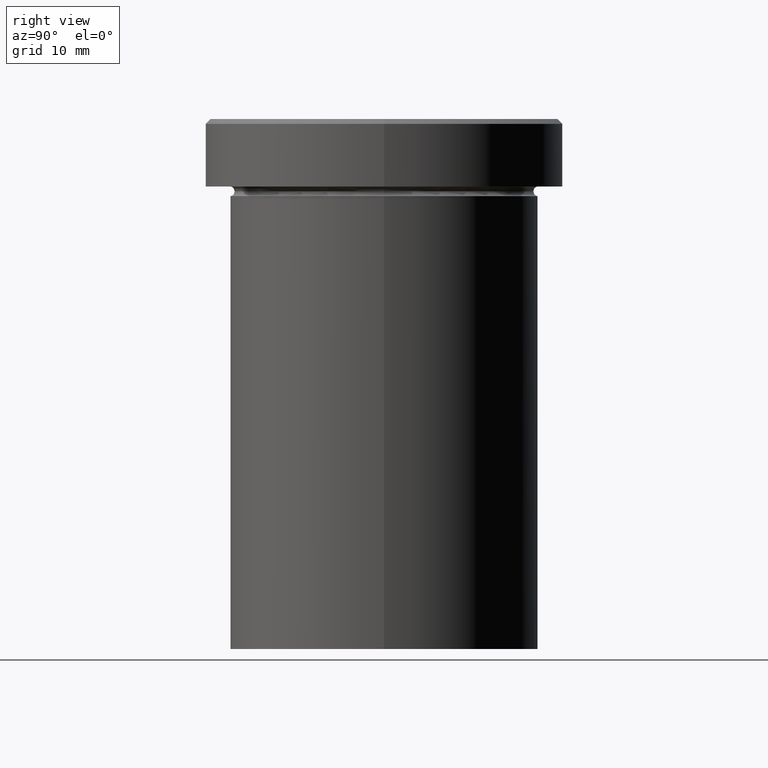
[diagram: clean part render]
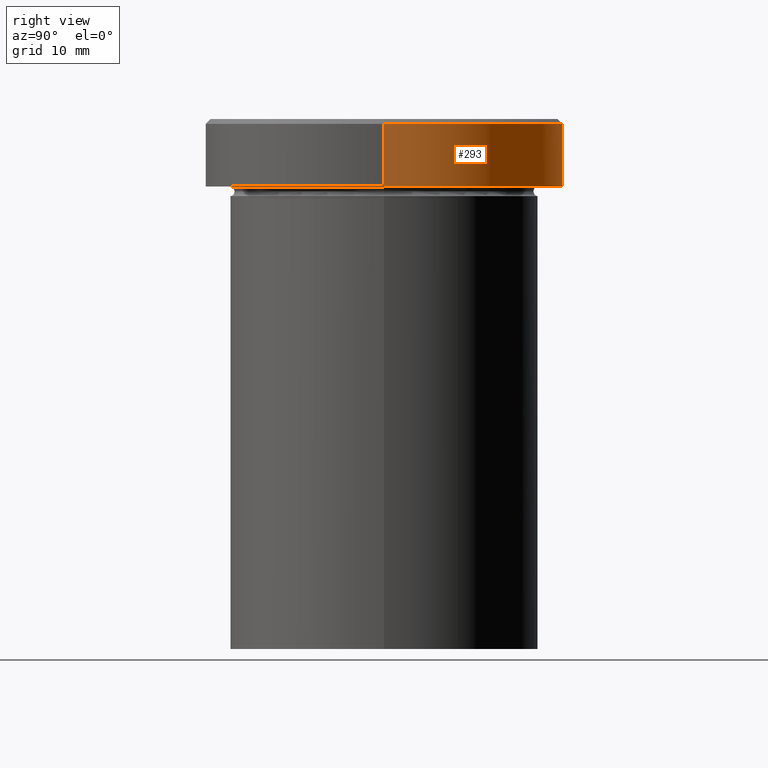
[diagram: same view with one face highlighted and labeled with its STEP entity id]
A machine part, right view. The second image highlights one B-rep face of the part: STEP entity #293.
In plain terms, the highlighted cylindrical surface (partial cylindrical patch) has radius 18.5 mm, axis along (-0, -0, 1).
Its self-contained STEP definition (entity closure, byte-faithful):
#4 = CARTESIAN_POINT ( 'NONE',  ( -18.50000000000000000, 2.265596578422603396E-15, -0.5000000000000143219 ) ) ;
#9 = AXIS2_PLACEMENT_3D ( 'NONE', #25, #23, #203 ) ;
#10 = LINE ( 'NONE', #346, #45 ) ;
#23 = DIRECTION ( 'NONE',  ( 0.000000000000000000, 0.000000000000000000, -1.000000000000000000 ) ) ;
#25 = CARTESIAN_POINT ( 'NONE',  ( 0.000000000000000000, 0.000000000000000000, -0.5000000000000143219 ) ) ;
#27 = ORIENTED_EDGE ( 'NONE', *, *, #159, .T. ) ;
#28 = CARTESIAN_POINT ( 'NONE',  ( 18.50000000000000000, 0.000000000000000000, -6.999999999999999112 ) ) ;
#45 = VECTOR ( 'NONE', #255, 1000.000000000000000 ) ;
#47 = CARTESIAN_POINT ( 'NONE',  ( -18.50000000000000000, 2.265596578422603396E-15, -6.999999999999999112 ) ) ;
#49 = VERTEX_POINT ( 'NONE', #126 ) ;
#54 = EDGE_LOOP ( 'NONE', ( #150, #161, #27, #277 ) ) ;
#74 = EDGE_CURVE ( 'NONE', #181, #375, #10, .T. ) ;
#76 = VECTOR ( 'NONE', #234, 1000.000000000000000 ) ;
#97 = AXIS2_PLACEMENT_3D ( 'NONE', #354, #162, #184 ) ;
#119 = DIRECTION ( 'NONE',  ( -0.000000000000000000, -0.000000000000000000, 1.000000000000000000 ) ) ;
#126 = CARTESIAN_POINT ( 'NONE',  ( 18.50000000000000000, 0.000000000000000000, -0.5000000000000143219 ) ) ;
#139 = FACE_OUTER_BOUND ( 'NONE', #54, .T. ) ;
#150 = ORIENTED_EDGE ( 'NONE', *, *, #362, .T. ) ;
#155 = EDGE_CURVE ( 'NONE', #315, #49, #226, .T. ) ;
#159 = EDGE_CURVE ( 'NONE', #375, #49, #164, .T. ) ;
#161 = ORIENTED_EDGE ( 'NONE', *, *, #74, .T. ) ;
#162 = DIRECTION ( 'NONE',  ( -0.000000000000000000, -0.000000000000000000, 1.000000000000000000 ) ) ;
#164 = CIRCLE ( 'NONE', #9, 18.50000000000000000 ) ;
#181 = VERTEX_POINT ( 'NONE', #47 ) ;
#182 = DIRECTION ( 'NONE',  ( 1.000000000000000000, 0.000000000000000000, 0.000000000000000000 ) ) ;
#184 = DIRECTION ( 'NONE',  ( 1.000000000000000000, 0.000000000000000000, 0.000000000000000000 ) ) ;
#203 = DIRECTION ( 'NONE',  ( 1.000000000000000000, 0.000000000000000000, 0.000000000000000000 ) ) ;
#205 = CARTESIAN_POINT ( 'NONE',  ( 0.000000000000000000, 0.000000000000000000, 0.000000000000000000 ) ) ;
#223 = CIRCLE ( 'NONE', #97, 18.50000000000000000 ) ;
#226 = LINE ( 'NONE', #403, #76 ) ;
#234 = DIRECTION ( 'NONE',  ( -0.000000000000000000, -0.000000000000000000, 1.000000000000000000 ) ) ;
#255 = DIRECTION ( 'NONE',  ( -0.000000000000000000, -0.000000000000000000, 1.000000000000000000 ) ) ;
#262 = AXIS2_PLACEMENT_3D ( 'NONE', #205, #119, #182 ) ;
#277 = ORIENTED_EDGE ( 'NONE', *, *, #155, .F. ) ;
#293 = ADVANCED_FACE ( 'NONE', ( #139 ), #406, .T. ) ;
#315 = VERTEX_POINT ( 'NONE', #28 ) ;
#346 = CARTESIAN_POINT ( 'NONE',  ( -18.50000000000000000, 2.265596578422603396E-15, 0.000000000000000000 ) ) ;
#354 = CARTESIAN_POINT ( 'NONE',  ( 0.000000000000000000, 0.000000000000000000, -6.999999999999999112 ) ) ;
#362 = EDGE_CURVE ( 'NONE', #315, #181, #223, .T. ) ;
#375 = VERTEX_POINT ( 'NONE', #4 ) ;
#403 = CARTESIAN_POINT ( 'NONE',  ( 18.50000000000000000, 0.000000000000000000, 0.000000000000000000 ) ) ;
#406 = CYLINDRICAL_SURFACE ( 'NONE', #262, 18.50000000000000000 ) ;